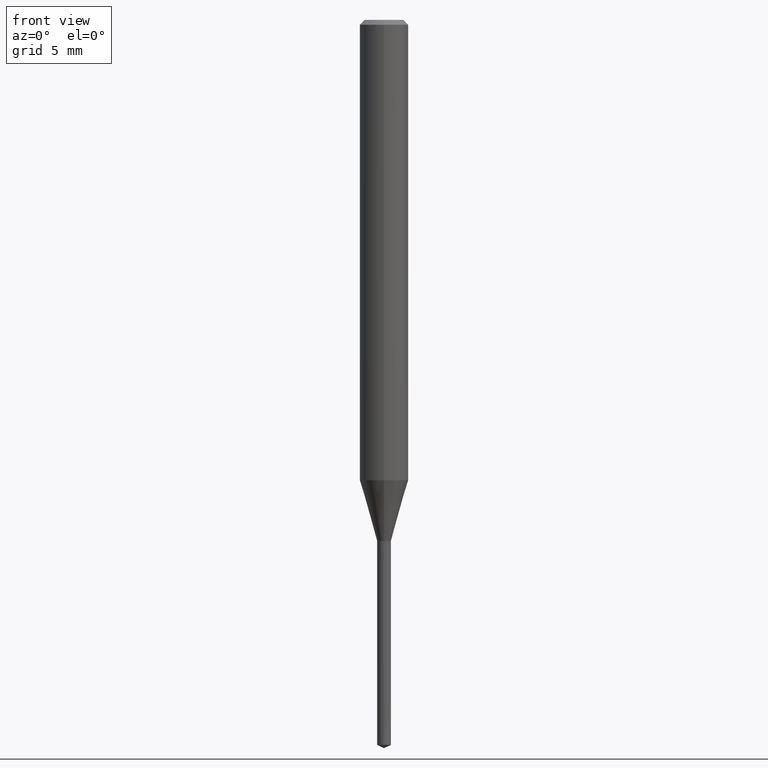
[diagram: clean part render]
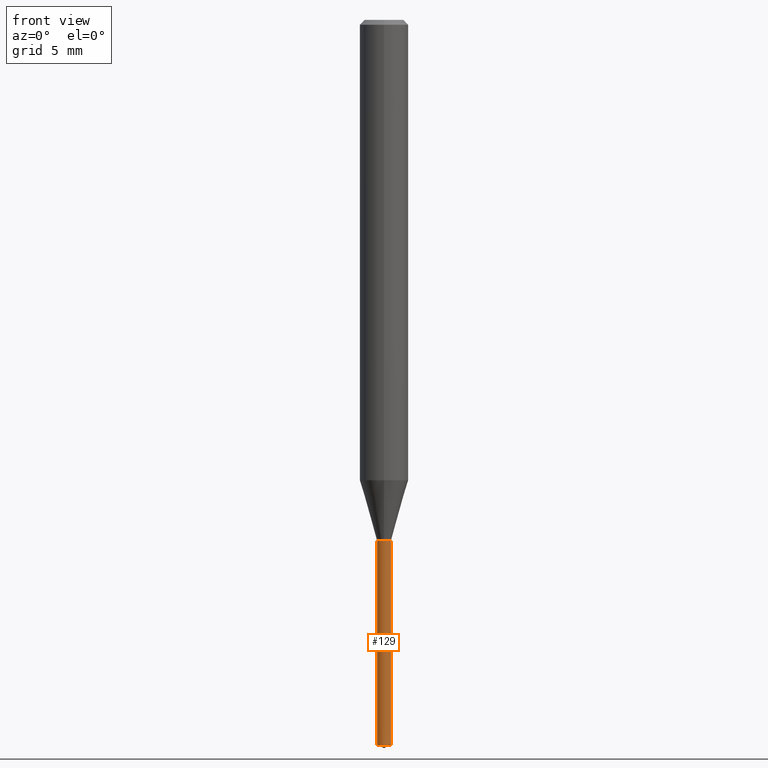
[diagram: same view with one face highlighted and labeled with its STEP entity id]
A machine part, front view. The second image highlights one B-rep face of the part: STEP entity #129.
In plain terms, the highlighted conical surface has half-angle 0.005 deg.
Its self-contained STEP definition (entity closure, byte-faithful):
#99=EDGE_CURVE('',#199,#119,#235,.T.);
#105=VERTEX_POINT('',#242);
#117=VERTEX_POINT('',#256);
#119=VERTEX_POINT('',#258);
#125=EDGE_CURVE('',#119,#105,#265,.T.);
#129=ADVANCED_FACE('',(#270),#271,.T.);
#189=EDGE_CURVE('',#117,#105,#336,.T.);
#199=VERTEX_POINT('',#348);
#203=EDGE_CURVE('',#117,#199,#352,.T.);
#235=CIRCLE('',#381,0.426);
#242=CARTESIAN_POINT('',(-0.425,0.0,-44.80181925));
#256=CARTESIAN_POINT('',(0.425,5.2045770037451E-017,-44.80181925));
#258=CARTESIAN_POINT('',(-0.426,0.0,-32.2));
#265=LINE('',#414,#415);
#270=FACE_OUTER_BOUND('',#420,.T.);
#271=CONICAL_SURFACE('',#421,0.4255,7.93536217321163E-005);
#336=CIRCLE('',#509,0.425);
#348=CARTESIAN_POINT('',(0.426,5.21682306728333E-017,-32.2));
#352=LINE('',#529,#530);
#381=AXIS2_PLACEMENT_3D('',#547,#548,#549);
#414=CARTESIAN_POINT('',(-0.4255,-5.21070003551421E-017,-38.500909625));
#415=VECTOR('',#587,1.0);
#420=EDGE_LOOP('',(#597,#598,#599,#600));
#421=AXIS2_PLACEMENT_3D('',#601,#602,#603);
#509=AXIS2_PLACEMENT_3D('',#673,#674,#675);
#529=CARTESIAN_POINT('',(0.4255,5.21070003551421E-017,-38.500909625));
#530=VECTOR('',#694,1.0);
#547=CARTESIAN_POINT('',(0.0,0.0,-32.2));
#548=DIRECTION('',(0.0,0.0,-1.0));
#549=DIRECTION('',(-1.0,0.0,0.0));
#587=DIRECTION('',(7.93536216488347E-005,9.717694926998E-021,-0.999999996851501));
#597=ORIENTED_EDGE('',*,*,#125,.T.);
#598=ORIENTED_EDGE('',*,*,#189,.F.);
#599=ORIENTED_EDGE('',*,*,#203,.T.);
#600=ORIENTED_EDGE('',*,*,#99,.T.);
#601=CARTESIAN_POINT('',(0.0,0.0,-38.500909625));
#602=DIRECTION('',(-0.0,-0.0,1.0));
#603=DIRECTION('',(-1.0,0.0,0.0));
#673=CARTESIAN_POINT('',(0.0,0.0,-44.80181925));
#674=DIRECTION('',(0.0,0.0,-1.0));
#675=DIRECTION('',(-1.0,0.0,0.0));
#694=DIRECTION('',(7.93536216488347E-005,9.717694926998E-021,0.999999996851501));